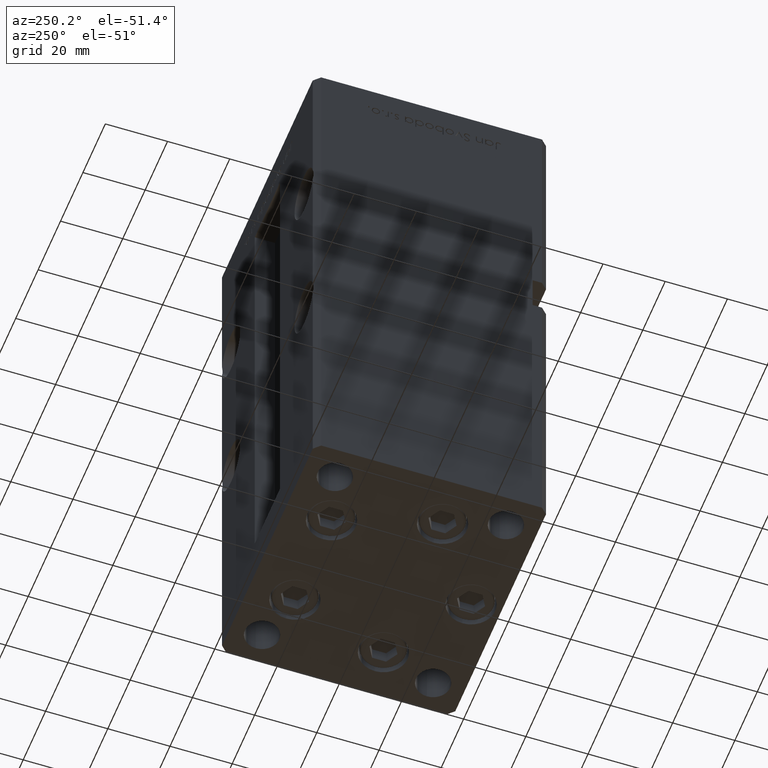
[diagram: clean part render]
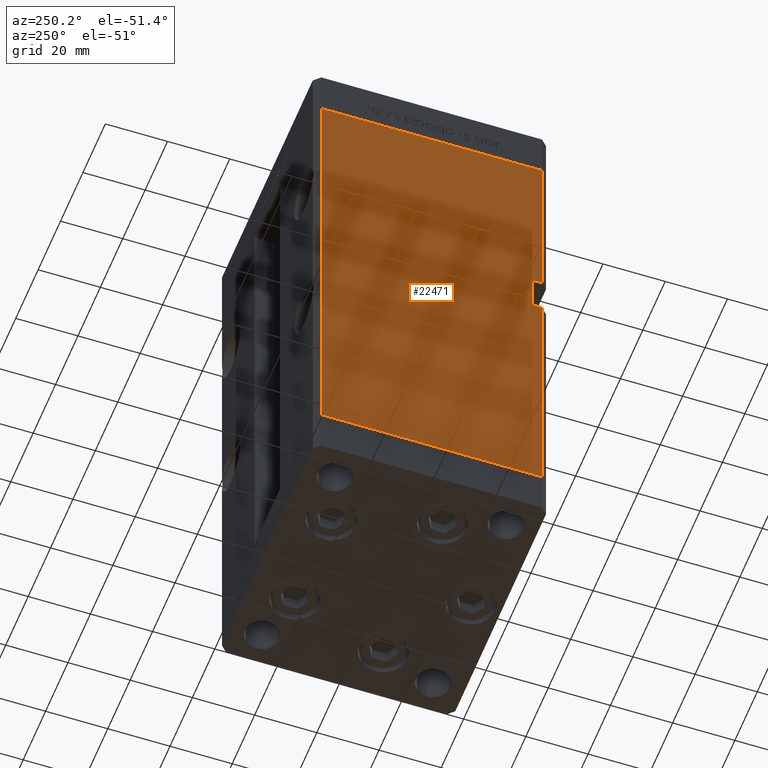
[diagram: same view with one face highlighted and labeled with its STEP entity id]
A machine part, auxiliary view. The second image highlights one B-rep face of the part: STEP entity #22471.
In plain terms, the highlighted planar face has unit normal (1, 0, 0).
Its self-contained STEP definition (entity closure, byte-faithful):
#248 = DIRECTION ( 'NONE',  ( -0.000000000000000000, -1.000000000000000000, -0.000000000000000000 ) ) ;
#2636 = EDGE_CURVE ( 'NONE', #48308, #3582, #8882, .T. ) ;
#3090 = CARTESIAN_POINT ( 'NONE',  ( -42.50000000000001421, 35.50000000000000711, 0.000000000000000000 ) ) ;
#3582 = VERTEX_POINT ( 'NONE', #6160 ) ;
#4078 = ORIENTED_EDGE ( 'NONE', *, *, #43784, .F. ) ;
#5388 = ORIENTED_EDGE ( 'NONE', *, *, #35877, .F. ) ;
#6080 = LINE ( 'NONE', #46642, #24142 ) ;
#6160 = CARTESIAN_POINT ( 'NONE',  ( -42.49999999999998579, -35.50000000000001421, 94.00000000000000000 ) ) ;
#6497 = CARTESIAN_POINT ( 'NONE',  ( -42.50000000000001421, 35.50000000000000711, 148.5000000000000000 ) ) ;
#7749 = ORIENTED_EDGE ( 'NONE', *, *, #36505, .F. ) ;
#8344 = CARTESIAN_POINT ( 'NONE',  ( -42.49999999999998579, -32.50000000000000711, 94.00000000000000000 ) ) ;
#8749 = CARTESIAN_POINT ( 'NONE',  ( -42.50000000000001421, 35.50000000000000711, 148.5000000000000000 ) ) ;
#8882 = LINE ( 'NONE', #25254, #40386 ) ;
#9869 = EDGE_CURVE ( 'NONE', #34531, #3582, #12377, .T. ) ;
#11976 = DIRECTION ( 'NONE',  ( 1.000000000000000000, 3.909236002201255146E-16, -0.000000000000000000 ) ) ;
#12377 = LINE ( 'NONE', #8344, #39739 ) ;
#14029 = LINE ( 'NONE', #6497, #21999 ) ;
#14576 = EDGE_LOOP ( 'NONE', ( #7749, #4078, #5388, #51553, #32806, #35427, #50284, #18281 ) ) ;
#14700 = VERTEX_POINT ( 'NONE', #3090 ) ;
#18281 = ORIENTED_EDGE ( 'NONE', *, *, #31917, .T. ) ;
#18503 = DIRECTION ( 'NONE',  ( -5.782411586589358625E-16, 0.000000000000000000, -1.000000000000000000 ) ) ;
#18571 = DIRECTION ( 'NONE',  ( -0.000000000000000000, -1.000000000000000000, -0.000000000000000000 ) ) ;
#18918 = VERTEX_POINT ( 'NONE', #23017 ) ;
#20047 = VERTEX_POINT ( 'NONE', #41538 ) ;
#20469 = DIRECTION ( 'NONE',  ( 3.909236002201255146E-16, -1.000000000000000000, 0.000000000000000000 ) ) ;
#20850 = VECTOR ( 'NONE', #18571, 1000.000000000000000 ) ;
#21999 = VECTOR ( 'NONE', #47044, 1000.000000000000000 ) ;
#22142 = EDGE_CURVE ( 'NONE', #18918, #14700, #14029, .T. ) ;
#22471 = ADVANCED_FACE ( 'NONE', ( #45526 ), #40973, .F. ) ;
#23017 = CARTESIAN_POINT ( 'NONE',  ( -42.50000000000001421, 35.50000000000000711, 148.5000000000000000 ) ) ;
#23456 = CARTESIAN_POINT ( 'NONE',  ( -42.49999999999998579, -32.50000000000000711, 82.00000000000000000 ) ) ;
#23724 = LINE ( 'NONE', #40635, #43917 ) ;
#24142 = VECTOR ( 'NONE', #51445, 1000.000000000000000 ) ;
#25254 = CARTESIAN_POINT ( 'NONE',  ( -42.49999999999998579, -35.50000000000000711, 148.5000000000000000 ) ) ;
#25453 = AXIS2_PLACEMENT_3D ( 'NONE', #8749, #11976, #44724 ) ;
#25814 = CARTESIAN_POINT ( 'NONE',  ( -42.49999999999998579, -32.50000000000000711, 82.00000000000000000 ) ) ;
#29413 = CARTESIAN_POINT ( 'NONE',  ( -42.49999999999998579, -32.50000000000000711, 94.00000000000000000 ) ) ;
#30383 = LINE ( 'NONE', #25814, #20850 ) ;
#31915 = VECTOR ( 'NONE', #18503, 1000.000000000000000 ) ;
#31917 = EDGE_CURVE ( 'NONE', #14700, #47005, #6080, .T. ) ;
#32511 = DIRECTION ( 'NONE',  ( -0.000000000000000000, -0.000000000000000000, -1.000000000000000000 ) ) ;
#32806 = ORIENTED_EDGE ( 'NONE', *, *, #2636, .F. ) ;
#32812 = LINE ( 'NONE', #40877, #48973 ) ;
#34370 = CARTESIAN_POINT ( 'NONE',  ( -42.49999999999998579, -35.50000000000000711, 0.000000000000000000 ) ) ;
#34531 = VERTEX_POINT ( 'NONE', #29413 ) ;
#34881 = LINE ( 'NONE', #46971, #31915 ) ;
#35427 = ORIENTED_EDGE ( 'NONE', *, *, #37680, .F. ) ;
#35877 = EDGE_CURVE ( 'NONE', #34531, #49716, #34881, .T. ) ;
#36505 = EDGE_CURVE ( 'NONE', #20047, #47005, #23724, .T. ) ;
#37680 = EDGE_CURVE ( 'NONE', #18918, #48308, #32812, .T. ) ;
#39172 = CARTESIAN_POINT ( 'NONE',  ( -42.49999999999998579, -35.50000000000000711, 148.5000000000000000 ) ) ;
#39739 = VECTOR ( 'NONE', #248, 1000.000000000000000 ) ;
#40386 = VECTOR ( 'NONE', #32511, 1000.000000000000000 ) ;
#40635 = CARTESIAN_POINT ( 'NONE',  ( -42.49999999999998579, -35.50000000000000711, 148.5000000000000000 ) ) ;
#40877 = CARTESIAN_POINT ( 'NONE',  ( -42.50000000000001421, 35.50000000000000711, 148.5000000000000000 ) ) ;
#40973 = PLANE ( 'NONE',  #25453 ) ;
#41538 = CARTESIAN_POINT ( 'NONE',  ( -42.49999999999998579, -35.49999999999996447, 82.00000000000000000 ) ) ;
#43784 = EDGE_CURVE ( 'NONE', #49716, #20047, #30383, .T. ) ;
#43917 = VECTOR ( 'NONE', #52432, 1000.000000000000000 ) ;
#44724 = DIRECTION ( 'NONE',  ( -3.909236002201255146E-16, 1.000000000000000000, 0.000000000000000000 ) ) ;
#45526 = FACE_OUTER_BOUND ( 'NONE', #14576, .T. ) ;
#46642 = CARTESIAN_POINT ( 'NONE',  ( -42.50000000000001421, 35.50000000000000711, 0.000000000000000000 ) ) ;
#46971 = CARTESIAN_POINT ( 'NONE',  ( -42.49999999999998579, -32.50000000000000711, 94.00000000000000000 ) ) ;
#47005 = VERTEX_POINT ( 'NONE', #34370 ) ;
#47044 = DIRECTION ( 'NONE',  ( -0.000000000000000000, -0.000000000000000000, -1.000000000000000000 ) ) ;
#48308 = VERTEX_POINT ( 'NONE', #39172 ) ;
#48973 = VECTOR ( 'NONE', #20469, 1000.000000000000000 ) ;
#49716 = VERTEX_POINT ( 'NONE', #23456 ) ;
#50284 = ORIENTED_EDGE ( 'NONE', *, *, #22142, .T. ) ;
#51445 = DIRECTION ( 'NONE',  ( 3.909236002201255146E-16, -1.000000000000000000, 0.000000000000000000 ) ) ;
#51553 = ORIENTED_EDGE ( 'NONE', *, *, #9869, .T. ) ;
#52432 = DIRECTION ( 'NONE',  ( -0.000000000000000000, -0.000000000000000000, -1.000000000000000000 ) ) ;